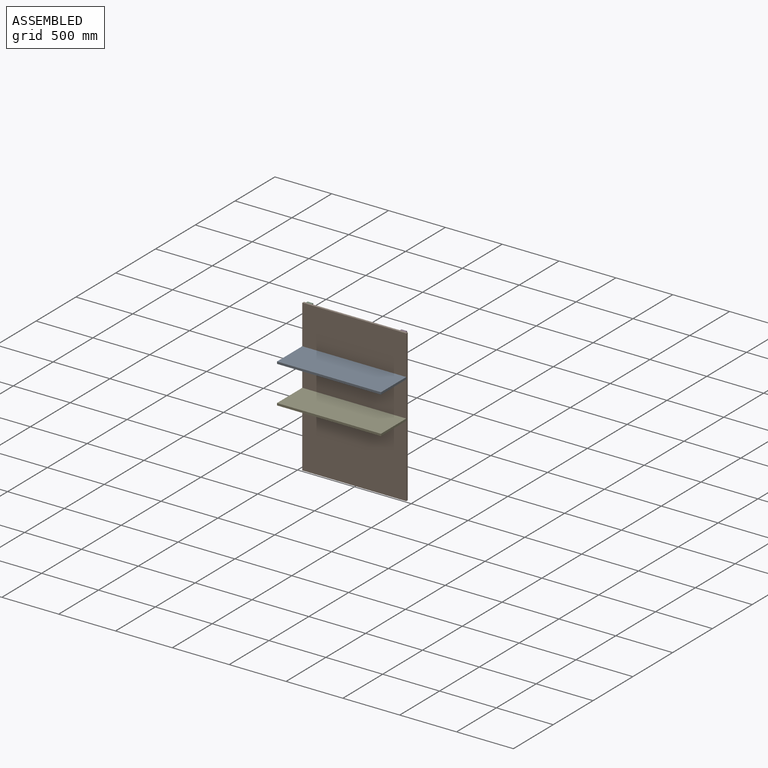
[diagram: assembled view]
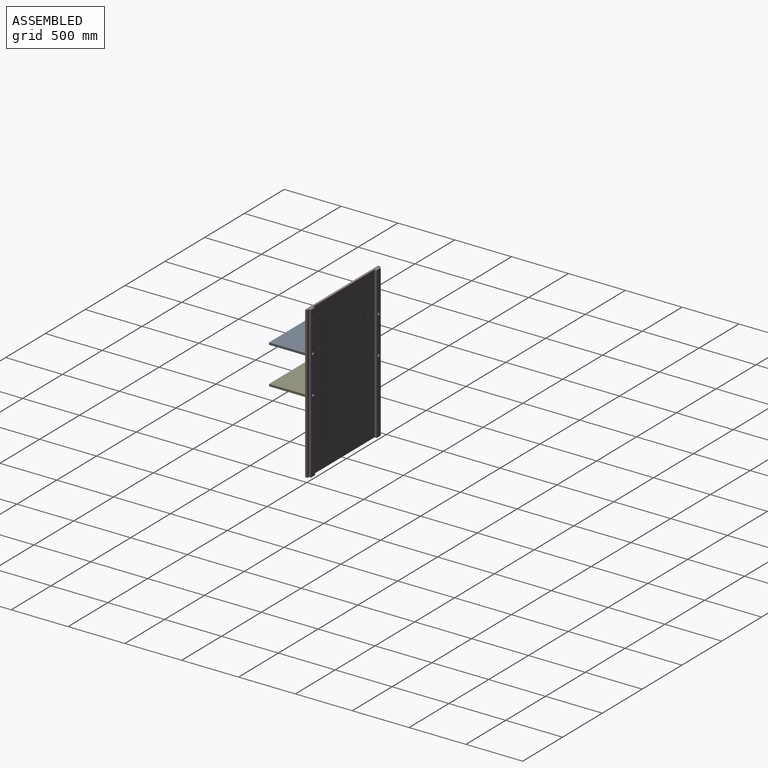
[diagram: assembled view, second angle]
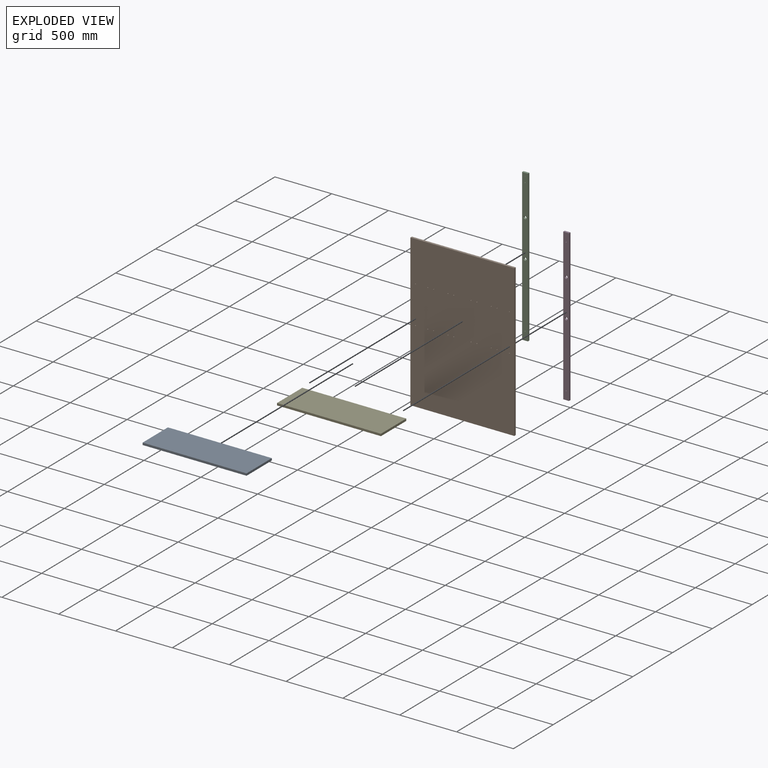
[diagram: exploded view]
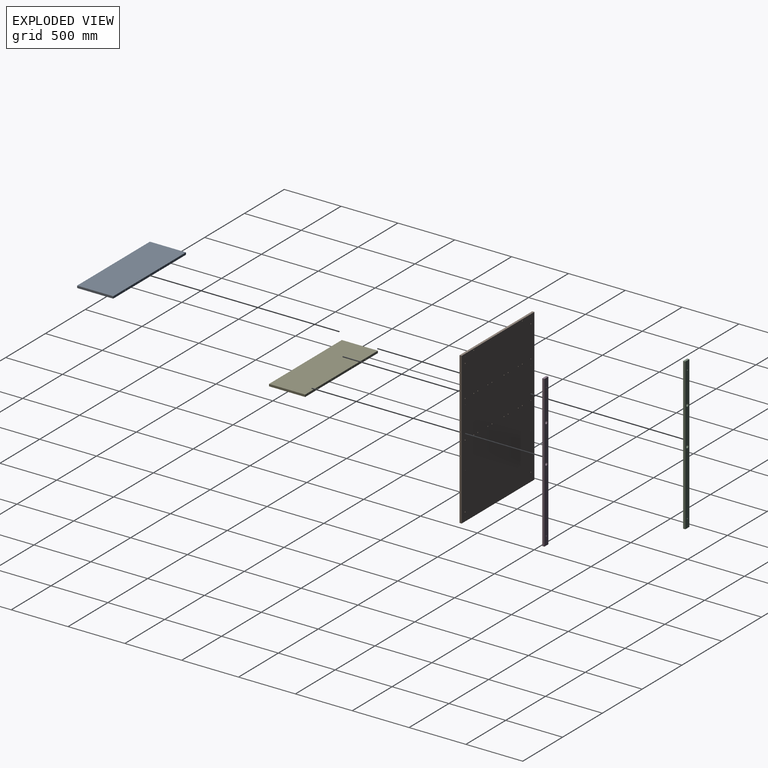
[diagram: exploded view, second angle]
ASSEMBLY  parts=5 mates=4
PART A: 26 faces, bbox 914.4x317.5x19.1 mm
  f0: plane 317.5x19.05mm, normal (1,0,0), area 6048.4mm2, adj f1,f3,f4,f5
  f1: plane 914.4x19.05mm, normal (0,1,0), area 17108.5mm2, adj f0,f2,f4,f5,f7,f9,f11,f13
  f2: plane 317.5x19.05mm, normal (-1,0,0), area 6048.4mm2, adj f1,f3,f4,f5
  f3: plane 914.4x19.05mm, normal (0,-1,0), area 17419.3mm2, adj f0,f2,f4,f5
  f4: plane 914.4x317.5mm, normal (0,0,1), area 290322mm2, adj f0,f1,f2,f3
  f5: plane 914.4x317.5mm, normal (0,0,-1), area 290322mm2, adj f0,f1,f2,f3
  f6: cone r=0mm half-angle=59deg, axis (0,1,0), area 21.3mm2, adj f7
  f7: cylinder r=2.41mm len=38.1mm, axis (0,1,0), area 577.6mm2, adj f1,f6
  f8: cone r=0mm half-angle=59deg, axis (0,1,0), area 21.3mm2, adj f9
  f9: cylinder r=2.41mm len=38.1mm, axis (0,1,0), area 577.6mm2, adj f1,f8
  f10: cone r=0mm half-angle=59deg, axis (0,1,0), area 21.3mm2, adj f11
  f11: cylinder r=2.41mm len=38.1mm, axis (0,1,0), area 577.6mm2, adj f1,f10
  f12: cone r=0mm half-angle=59deg, axis (0,1,0), area 21.3mm2, adj f13
  f13: cylinder r=2.41mm len=38.1mm, axis (0,1,0), area 577.6mm2, adj f1,f12
  f14: cone r=0mm half-angle=59deg, axis (0,1,0), area 21.3mm2, adj f15
  f15: cylinder r=2.41mm len=38.1mm, axis (0,1,0), area 577.6mm2, adj f1,f14
  f16: cone r=0mm half-angle=59deg, axis (0,1,0), area 21.3mm2, adj f17
  f17: cylinder r=2.41mm len=38.1mm, axis (0,1,0), area 577.6mm2, adj f1,f16
  f18: cone r=0mm half-angle=59deg, axis (0,1,0), area 58.7mm2, adj f19
  f19: cylinder r=4mm len=15.24mm, axis (0,1,0), area 383.1mm2, adj f1,f18
  f20: cone r=0mm half-angle=59deg, axis (0,1,0), area 58.7mm2, adj f21
  f21: cylinder r=4mm len=15.24mm, axis (0,1,0), area 383.1mm2, adj f1,f20
  f22: cone r=0mm half-angle=59deg, axis (0,1,0), area 58.7mm2, adj f23
  f23: cylinder r=4mm len=15.24mm, axis (0,1,0), area 383.1mm2, adj f1,f22
  f24: cone r=0mm half-angle=59deg, axis (0,1,0), area 58.7mm2, adj f25
  f25: cylinder r=4mm len=15.24mm, axis (0,1,0), area 383.1mm2, adj f1,f24
PART B: 54 faces, bbox 914.4x19.1x1333.5 mm
  f0: plane 1333.5x19.05mm, normal (1,0,0), area 25403.2mm2, adj f1,f3,f4,f5
  f1: plane 914.4x19.05mm, normal (0,0,1), area 17419.3mm2, adj f0,f2,f4,f5
  f2: plane 1333.5x19.05mm, normal (-1,0,0), area 25403.2mm2, adj f1,f3,f4,f5
  f3: plane 914.4x19.05mm, normal (0,0,-1), area 17419.3mm2, adj f0,f2,f4,f5
  f4: plane 1333.5x914.4mm, normal (0,-1,0), area 1218346.8mm2, adj f0,f1,f2,f3,f30,f31,f32,f33
  f5: plane 1333.5x914.4mm, normal (0,1,0), area 1217981.8mm2, adj f0,f1,f2,f3,f7,f9,f11,f13
  f6: cone r=0mm half-angle=59deg, axis (0,1,0), area 9.2mm2, adj f7
  f7: cylinder r=1.59mm len=6.35mm, axis (0,1,0), area 63.3mm2, adj f5,f6
  f8: cone r=0mm half-angle=59deg, axis (0,1,0), area 9.2mm2, adj f9
  f9: cylinder r=1.59mm len=6.35mm, axis (0,1,0), area 63.3mm2, adj f5,f8
  f10: cone r=0mm half-angle=59deg, axis (0,1,0), area 9.2mm2, adj f11
  f11: cylinder r=1.59mm len=6.35mm, axis (0,1,0), area 63.3mm2, adj f5,f10
  f12: cone r=0mm half-angle=59deg, axis (0,1,0), area 9.2mm2, adj f13
  f13: cylinder r=1.59mm len=6.35mm, axis (0,1,0), area 63.3mm2, adj f5,f12
  f14: cone r=0mm half-angle=59deg, axis (0,1,0), area 9.2mm2, adj f15
  f15: cylinder r=1.59mm len=6.35mm, axis (0,1,0), area 63.3mm2, adj f5,f14
  f16: cone r=0mm half-angle=59deg, axis (0,1,0), area 9.2mm2, adj f17
  f17: cylinder r=1.59mm len=6.35mm, axis (0,1,0), area 63.3mm2, adj f5,f16
  f18: cone r=0mm half-angle=59deg, axis (0,1,0), area 9.2mm2, adj f19
  f19: cylinder r=1.59mm len=6.35mm, axis (0,1,0), area 63.3mm2, adj f5,f18
  f20: cone r=0mm half-angle=59deg, axis (0,1,0), area 9.2mm2, adj f21
  f21: cylinder r=1.59mm len=6.35mm, axis (0,1,0), area 63.3mm2, adj f5,f20
  f22: cone r=0mm half-angle=59deg, axis (0,1,0), area 58.7mm2, adj f23
  f23: cylinder r=4mm len=14.22mm, axis (0,1,0), area 357.5mm2, adj f5,f22
  f24: cone r=0mm half-angle=59deg, axis (0,1,0), area 58.7mm2, adj f25
  f25: cylinder r=4mm len=14.22mm, axis (0,1,0), area 357.5mm2, adj f5,f24
  f26: cone r=0mm half-angle=59deg, axis (0,1,0), area 58.7mm2, adj f27
  f27: cylinder r=4mm len=14.22mm, axis (0,1,0), area 357.5mm2, adj f5,f26
  f28: cone r=0mm half-angle=59deg, axis (0,1,0), area 58.7mm2, adj f29
  f29: cylinder r=4mm len=14.22mm, axis (0,1,0), area 357.5mm2, adj f5,f28
  f30: cylinder r=4mm len=19.05mm, axis (0,-1,0), area 478.8mm2, adj f4,f5
  f31: cylinder r=4mm len=19.05mm, axis (0,-1,0), area 478.8mm2, adj f4,f5
  f32: cylinder r=4mm len=19.05mm, axis (0,-1,0), area 478.8mm2, adj f4,f5
  f33: cylinder r=4mm len=19.05mm, axis (0,-1,0), area 478.8mm2, adj f4,f5
  f34: cylinder r=4mm len=19.05mm, axis (0,-1,0), area 478.8mm2, adj f4,f5
  f35: cylinder r=4mm len=19.05mm, axis (0,-1,0), area 478.8mm2, adj f4,f5
  f36: cylinder r=4mm len=19.05mm, axis (0,-1,0), area 478.8mm2, adj f4,f5
  f37: cylinder r=4mm len=19.05mm, axis (0,-1,0), area 478.8mm2, adj f4,f5
  f38: cylinder r=4mm len=19.05mm, axis (0,-1,0), area 478.8mm2, adj f4,f5
  f39: cylinder r=4mm len=19.05mm, axis (0,-1,0), area 478.8mm2, adj f4,f5
  f40: cylinder r=4mm len=19.05mm, axis (0,-1,0), area 478.8mm2, adj f4,f5
  f41: cylinder r=4mm len=19.05mm, axis (0,-1,0), area 478.8mm2, adj f4,f5
  f42: cone r=0mm half-angle=59deg, axis (0,1,0), area 58.7mm2, adj f43
  f43: cylinder r=4mm len=14.22mm, axis (0,1,0), area 357.5mm2, adj f5,f42
  f44: cone r=0mm half-angle=59deg, axis (0,1,0), area 58.7mm2, adj f45
  f45: cylinder r=4mm len=14.22mm, axis (0,1,0), area 357.5mm2, adj f5,f44
  f46: cylinder r=4mm len=19.05mm, axis (0,1,0), area 478.8mm2, adj f4,f5
  f47: cylinder r=4mm len=19.05mm, axis (0,1,0), area 478.8mm2, adj f4,f5
  f48: cylinder r=4mm len=19.05mm, axis (0,1,0), area 478.8mm2, adj f4,f5
  f49: cylinder r=4mm len=19.05mm, axis (0,1,0), area 478.8mm2, adj f4,f5
  f50: cylinder r=4mm len=19.05mm, axis (0,1,0), area 478.8mm2, adj f4,f5
  f51: cylinder r=4mm len=19.05mm, axis (0,1,0), area 478.8mm2, adj f4,f5
  f52: cylinder r=4mm len=19.05mm, axis (0,1,0), area 478.8mm2, adj f4,f5
  f53: cylinder r=4mm len=19.05mm, axis (0,1,0), area 478.8mm2, adj f4,f5
PART C: 18 faces, bbox 50.8x19.1x1333.5 mm
  f0: plane 1333.5x19.05mm, normal (1,0,0), area 25403.2mm2, adj f1,f3,f4,f5
  f1: plane 50.8x19.05mm, normal (0,0,1), area 967.7mm2, adj f0,f2,f4,f5
  f2: plane 1333.5x19.05mm, normal (-1,0,0), area 25403.2mm2, adj f1,f3,f4,f5
  f3: plane 50.8x19.05mm, normal (0,0,-1), area 967.7mm2, adj f0,f2,f4,f5
  f4: plane 1333.5x50.8mm, normal (0,-1,0), area 66596.2mm2, adj f0,f1,f2,f3,f7,f9,f11,f13
  f5: plane 1333.5x50.8mm, normal (0,1,0), area 66627.8mm2, adj f0,f1,f2,f3,f14,f15,f16,f17
  f6: cone r=0mm half-angle=59deg, axis (0,-1,0), area 9.2mm2, adj f7
  f7: cylinder r=1.59mm len=14.22mm, axis (0,-1,0), area 141.9mm2, adj f4,f6
  f8: cone r=0mm half-angle=59deg, axis (0,-1,0), area 9.2mm2, adj f9
  f9: cylinder r=1.59mm len=14.22mm, axis (0,-1,0), area 141.9mm2, adj f4,f8
  f10: cone r=0mm half-angle=59deg, axis (0,-1,0), area 9.2mm2, adj f11
  f11: cylinder r=1.59mm len=14.22mm, axis (0,-1,0), area 141.9mm2, adj f4,f10
  f12: cone r=0mm half-angle=59deg, axis (0,-1,0), area 9.2mm2, adj f13
  f13: cylinder r=1.59mm len=14.22mm, axis (0,-1,0), area 141.9mm2, adj f4,f12
  f14: cylinder r=4mm len=19.05mm, axis (0,-1,0), area 478.8mm2, adj f4,f5
  f15: cylinder r=4mm len=19.05mm, axis (0,-1,0), area 478.8mm2, adj f4,f5
  f16: cylinder r=12.7mm len=25.4mm, axis (0,-1,0), area 1520.1mm2, adj f4,f5
  f17: cylinder r=12.7mm len=25.4mm, axis (0,-1,0), area 1520.1mm2, adj f4,f5
PART D: same geometry as C
PART E: same geometry as A
PLACE A t=(20.73,-188.84,252.83)mm
PLACE B t=(20.73,-11.04,-48.8)mm
PLACE C t=(-392.02,8.01,-48.8)mm
PLACE D t=(433.48,8.01,-48.8)mm
PLACE E t=(20.73,-188.84,-77.37)mm
MATE planar E.f16 <-> B.f39  axis (0,1,0) through (433.48,-30.09,-67.85)mm
MATE planar C.f15 <-> B.f24  axis (0,-1,0) through (-392.02,-11.04,541.75)mm
MATE planar D.f15 <-> B.f26  axis (0,-1,0) through (433.48,-11.04,541.75)mm
MATE planar A.f6 <-> B.f30  axis (0,1,0) through (-392.02,-30.09,262.35)mm
